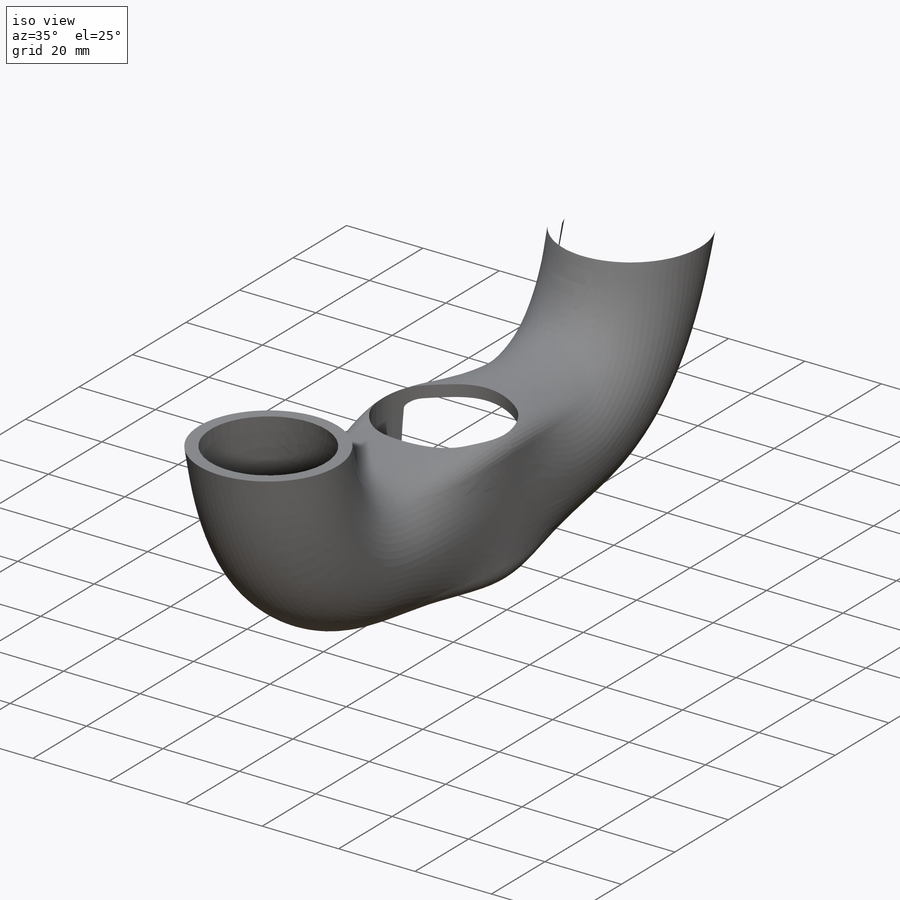
[diagram: iso view]
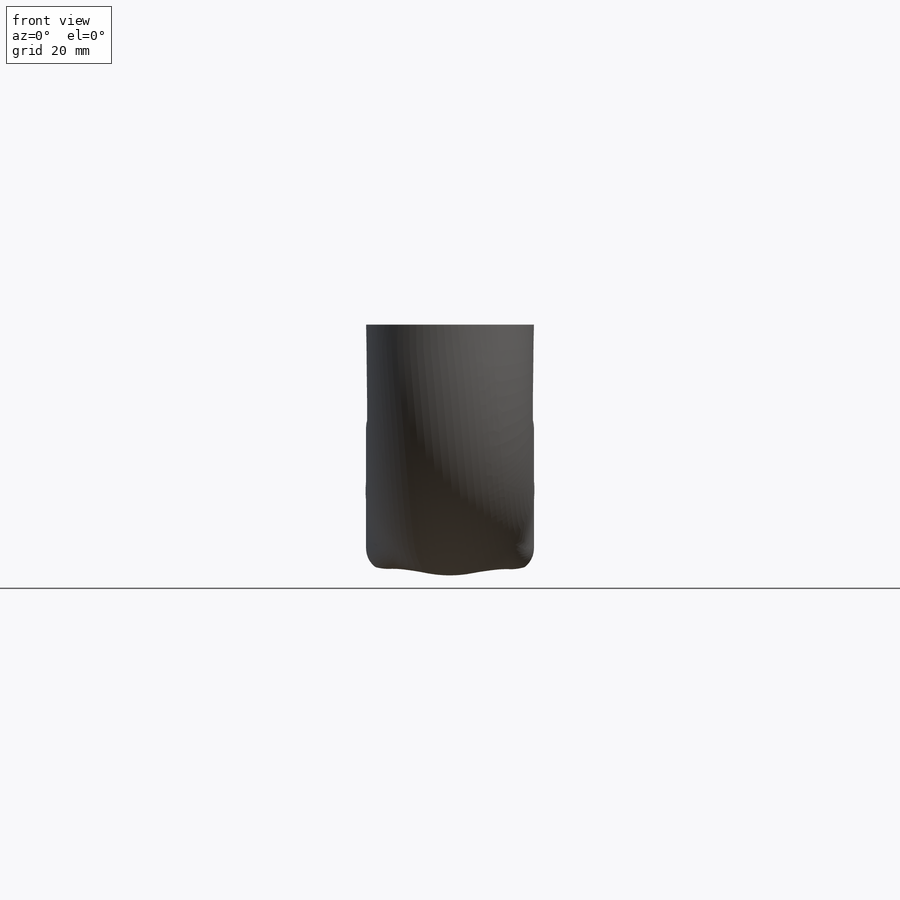
[diagram: front view]
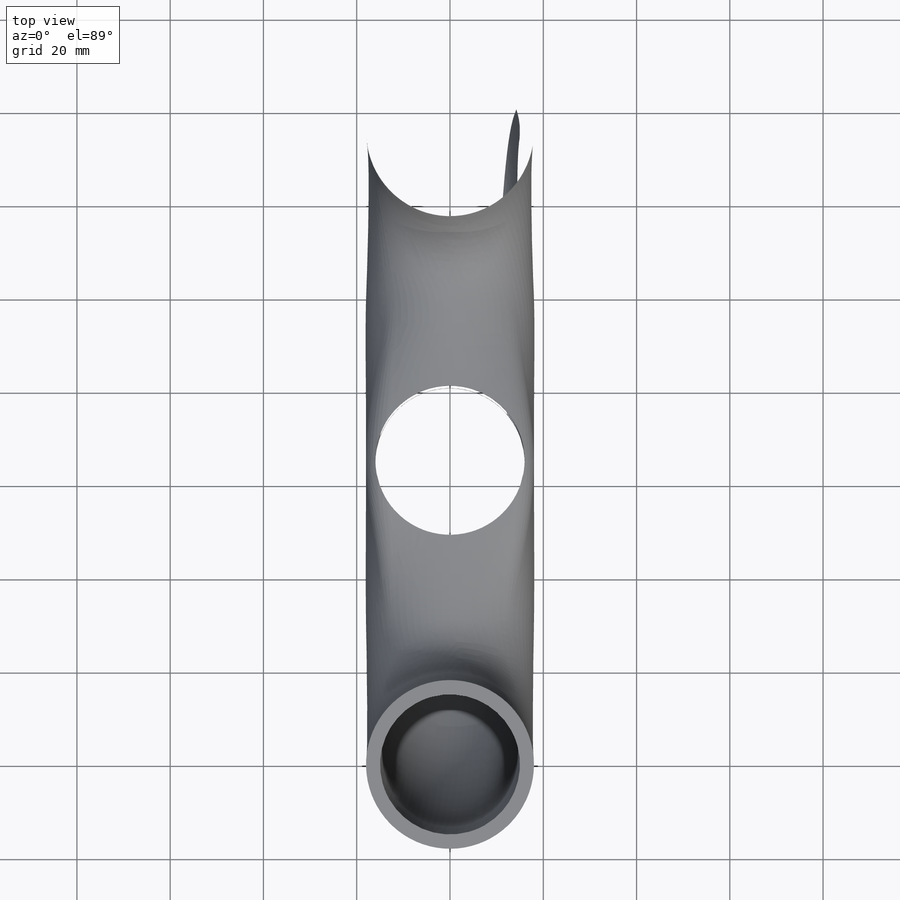
[diagram: top view]
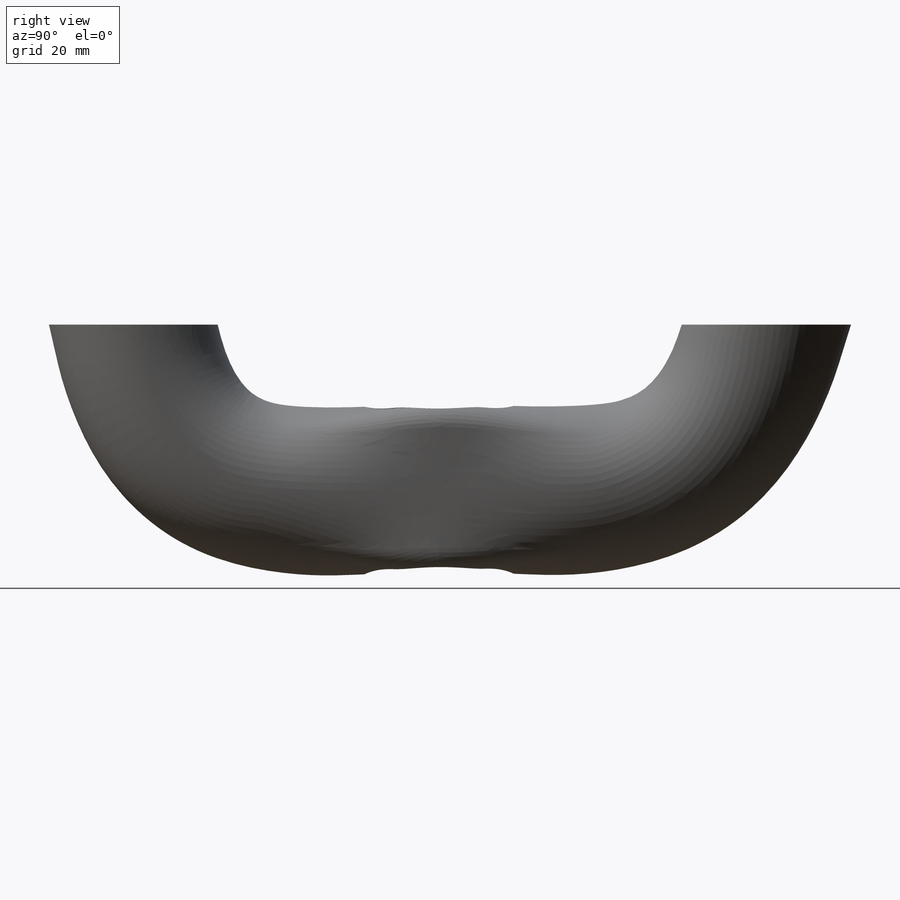
[diagram: right view]
SOLIDWORKS PART (.sldprt)
format: sldprt  version: not decoded by parser v0  size: 1,860,608 bytes
history: native  units: mm
features: sketch x22, plane x8, material x1, cut_extrude x1, extrude x1 (+9 scaffold rows collapsed)
feature tree (42):
  scaffold x9  (default folders/planes/origin — collapsed)
  material  "Material <nicht festgelegt>"
  plane  "Ebene vorne"
  plane  "Ebene oben"
  plane  "Ebene rechts"
  plane  "Ebene1"  Offset=35mm
  plane  "Ebene2"  Offset=70mm
  sketch  "Skizze1"
  sketch  "Skizze2"
  sketch  "Skizze3"
  plane  "Ebene4"  Offset=35mm
  sketch  "Skizze4"
  sketch  "Skizze5"  dims[D1=20.0mm]
  sketch  "Skizze6"
  sketch  "Skizze7"  dims[D1=3.0mm]
  plane  "Ebene5"  Offset=145mm
  sketch  "Skizze13"  dims[D1=30.0mm]
  sketch  "Skizze14"  dims[D1=2.0mm]
  sketch  "Skizze15"
  sketch  "Skizze16"  dims[D1=30.0mm]
  sketch  "Skizze17"  dims[D1=30.0mm]
  sketch  "Skizze18"  dims[D1=3.0mm]
  sketch  "Skizze19"  dims[D1=32.0mm]
  cut_extrude  "Schnitt-Linear austragen1"  [1 undecoded]
  plane  "Ebene6"  Offset=85mm
  sketch  "Skizze21"  dims[c1.D2=10.0mm c1.D1=20.0mm c2.D2=~66.357889mm]
  sketch  "Skizze22"
  sketch  "Skizze23"
  sketch  "Skizze24"
  extrude  "Oberfläche-Ausformung14"  [1 undecoded]
  sketch  "Skizze21<286>"
  sketch  "Skizze22<5>"
  sketch  "Skizze23<5>"
  sketch  "Skizze24<3>"
decode coverage: 9 of 24 modeling features carry decoded parameters
note: ~ marks probable driven/reference dimensions
note: 2 parameter values undecoded
note: suppression state not decoded; provenance and decode notes live in map.json
